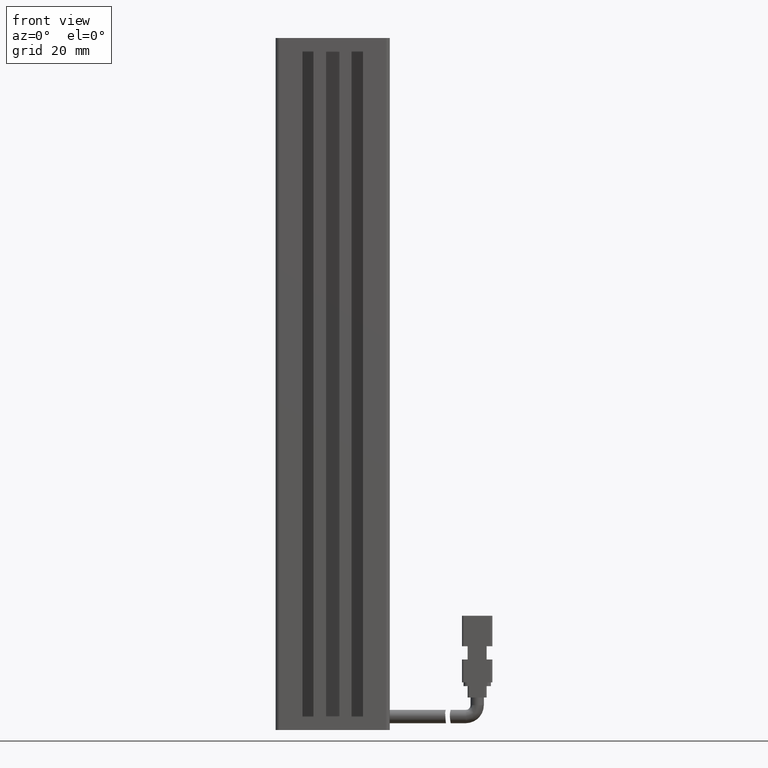
[diagram: clean part render]
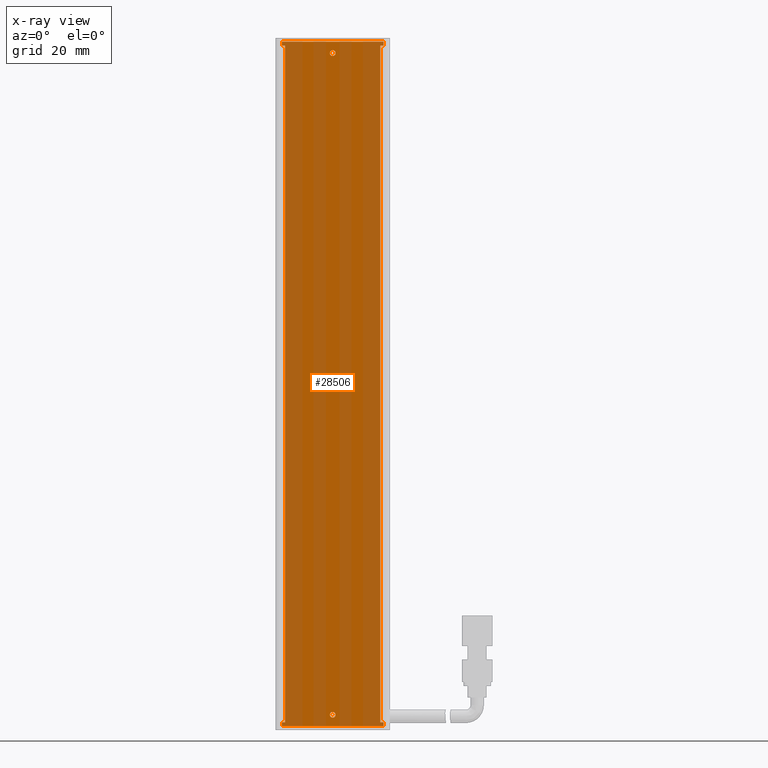
[diagram: x-ray — body ghosted, one internal face saturated and labeled with its STEP entity id]
A machine part, front view, then the same camera in x-ray: the body is ghosted and one INTERNAL B-rep face — a face not visible from any outside direction — is saturated and labeled: STEP entity #28506.
In plain terms, the highlighted planar face has unit normal (-0, 1, 0).
Its self-contained STEP definition (entity closure, byte-faithful):
#586 = CARTESIAN_POINT ( 'NONE',  ( 54.32537974683541600, 32.19594479660386100, -24.99999999999999300 ) ) ;
#869 = DIRECTION ( 'NONE',  ( 0.0000000000000000000, 0.0000000000000000000, 1.000000000000000000 ) ) ;
#938 = VERTEX_POINT ( 'NONE', #8611 ) ;
#1006 = DIRECTION ( 'NONE',  ( -0.0000000000000000000, -1.000000000000000000, -0.0000000000000000000 ) ) ;
#1610 = LINE ( 'NONE', #18017, #9431 ) ;
#2185 = LINE ( 'NONE', #17272, #28840 ) ;
#2342 = EDGE_LOOP ( 'NONE', ( #6633, #31073 ) ) ;
#2847 = VECTOR ( 'NONE', #19498, 1000.000000000000000 ) ;
#3091 = VERTEX_POINT ( 'NONE', #15823 ) ;
#3296 = EDGE_CURVE ( 'NONE', #10468, #37437, #26342, .T. ) ;
#3330 = ORIENTED_EDGE ( 'NONE', *, *, #36889, .F. ) ;
#3418 = EDGE_LOOP ( 'NONE', ( #21195, #26104 ) ) ;
#3920 = DIRECTION ( 'NONE',  ( 5.551115123125781500E-017, 0.0000000000000000000, 1.000000000000000000 ) ) ;
#4083 = EDGE_CURVE ( 'NONE', #6111, #3091, #1610, .T. ) ;
#4271 = AXIS2_PLACEMENT_3D ( 'NONE', #33693, #13590, #37072 ) ;
#4693 = CARTESIAN_POINT ( 'NONE',  ( 28.42537974683542100, 32.19594479660386100, -26.00000000000001100 ) ) ;
#4729 = VERTEX_POINT ( 'NONE', #34956 ) ;
#4782 = VECTOR ( 'NONE', #25027, 1000.000000000000000 ) ;
#5837 = LINE ( 'NONE', #21678, #4782 ) ;
#5924 = AXIS2_PLACEMENT_3D ( 'NONE', #586, #23907, #3920 ) ;
#6111 = VERTEX_POINT ( 'NONE', #42125 ) ;
#6283 = ORIENTED_EDGE ( 'NONE', *, *, #11547, .F. ) ;
#6326 = VERTEX_POINT ( 'NONE', #38513 ) ;
#6566 = VERTEX_POINT ( 'NONE', #33978 ) ;
#6607 = VECTOR ( 'NONE', #9261, 1000.000000000000000 ) ;
#6633 = ORIENTED_EDGE ( 'NONE', *, *, #34277, .F. ) ;
#6950 = VECTOR ( 'NONE', #18146, 1000.000000000000000 ) ;
#7240 = DIRECTION ( 'NONE',  ( 1.000000000000000000, 0.0000000000000000000, -0.0000000000000000000 ) ) ;
#7245 = DIRECTION ( 'NONE',  ( 1.000000000000000000, 0.0000000000000000000, 0.0000000000000000000 ) ) ;
#7682 = LINE ( 'NONE', #32665, #6607 ) ;
#7920 = LINE ( 'NONE', #25223, #16776 ) ;
#8093 = CARTESIAN_POINT ( 'NONE',  ( 27.52537974683539100, 32.19594479660386100, -205.0000000000000000 ) ) ;
#8461 = CARTESIAN_POINT ( 'NONE',  ( 40.92537974683542500, 32.19594479660386800, -204.0000000000000300 ) ) ;
#8611 = CARTESIAN_POINT ( 'NONE',  ( 40.92537974683538900, 32.19594479660386100, -202.7500000000000000 ) ) ;
#8874 = ORIENTED_EDGE ( 'NONE', *, *, #34126, .T. ) ;
#9261 = DIRECTION ( 'NONE',  ( -0.0000000000000000000, -0.0000000000000000000, -1.000000000000000000 ) ) ;
#9293 = AXIS2_PLACEMENT_3D ( 'NONE', #14011, #37519, #17437 ) ;
#9431 = VECTOR ( 'NONE', #17013, 1000.000000000000000 ) ;
#9686 = EDGE_CURVE ( 'NONE', #11628, #15340, #19818, .T. ) ;
#9893 = VECTOR ( 'NONE', #7240, 1000.000000000000000 ) ;
#10179 = ORIENTED_EDGE ( 'NONE', *, *, #25696, .F. ) ;
#10455 = DIRECTION ( 'NONE',  ( -1.000000000000000000, -0.0000000000000000000, 5.551115123125781500E-017 ) ) ;
#10468 = VERTEX_POINT ( 'NONE', #15850 ) ;
#10643 = CARTESIAN_POINT ( 'NONE',  ( 40.92537974683542500, 32.19594479660386800, -26.00000000000001100 ) ) ;
#10868 = CIRCLE ( 'NONE', #17617, 0.7500000000000006700 ) ;
#11547 = EDGE_CURVE ( 'NONE', #27815, #6326, #25098, .T. ) ;
#11628 = VERTEX_POINT ( 'NONE', #13786 ) ;
#11691 = LINE ( 'NONE', #29623, #2847 ) ;
#11800 = EDGE_CURVE ( 'NONE', #938, #25135, #10868, .T. ) ;
#11870 = CARTESIAN_POINT ( 'NONE',  ( 40.92537974683541800, 32.19594479660386100, -28.74999999999999600 ) ) ;
#11885 = ORIENTED_EDGE ( 'NONE', *, *, #12696, .F. ) ;
#12021 = CARTESIAN_POINT ( 'NONE',  ( 40.92537974683538900, 32.19594479660386100, -201.9999999999999700 ) ) ;
#12696 = EDGE_CURVE ( 'NONE', #11628, #4729, #30102, .T. ) ;
#13490 = FACE_BOUND ( 'NONE', #2342, .T. ) ;
#13590 = DIRECTION ( 'NONE',  ( -0.0000000000000000000, -1.000000000000000000, -0.0000000000000000000 ) ) ;
#13786 = CARTESIAN_POINT ( 'NONE',  ( 27.52537974683539100, 32.19594479660386800, -26.00000000000001100 ) ) ;
#14011 = CARTESIAN_POINT ( 'NONE',  ( 40.92537974683541800, 32.19594479660386100, -27.99999999999999600 ) ) ;
#14955 = DIRECTION ( 'NONE',  ( 5.551115123125781500E-017, 0.0000000000000000000, 1.000000000000000000 ) ) ;
#15340 = VERTEX_POINT ( 'NONE', #4693 ) ;
#15823 = CARTESIAN_POINT ( 'NONE',  ( 27.52537974683539100, 32.19594479660386800, -204.0000000000000300 ) ) ;
#15836 = EDGE_LOOP ( 'NONE', ( #34553, #32792, #38875, #6283, #3330, #11885, #22278, #8874, #34770, #19372, #10179, #26673 ) ) ;
#15850 = CARTESIAN_POINT ( 'NONE',  ( 53.42537974683542500, 32.19594479660386100, -204.0000000000000300 ) ) ;
#16776 = VECTOR ( 'NONE', #38567, 1000.000000000000000 ) ;
#16873 = LINE ( 'NONE', #18012, #6950 ) ;
#17013 = DIRECTION ( 'NONE',  ( -1.000000000000000000, -0.0000000000000000000, 0.0000000000000000000 ) ) ;
#17039 = DIRECTION ( 'NONE',  ( -0.0000000000000000000, -1.000000000000000000, -0.0000000000000000000 ) ) ;
#17272 = CARTESIAN_POINT ( 'NONE',  ( 53.42537974683542500, 32.19594479660386800, -24.00000000000000700 ) ) ;
#17437 = DIRECTION ( 'NONE',  ( 0.0000000000000000000, 0.0000000000000000000, 1.000000000000000000 ) ) ;
#17565 = CIRCLE ( 'NONE', #4271, 0.7500000000000006700 ) ;
#17617 = AXIS2_PLACEMENT_3D ( 'NONE', #12021, #1006, #869 ) ;
#18012 = CARTESIAN_POINT ( 'NONE',  ( 27.52537974683540200, 32.19594479660386100, -24.99999999999999300 ) ) ;
#18017 = CARTESIAN_POINT ( 'NONE',  ( 40.92537974683542500, 32.19594479660386800, -204.0000000000000300 ) ) ;
#18146 = DIRECTION ( 'NONE',  ( 5.551115123125781500E-017, 0.0000000000000000000, 1.000000000000000000 ) ) ;
#19372 = ORIENTED_EDGE ( 'NONE', *, *, #37217, .F. ) ;
#19498 = DIRECTION ( 'NONE',  ( 1.000000000000000000, 0.0000000000000000000, -5.551115123125781500E-017 ) ) ;
#19818 = LINE ( 'NONE', #10643, #9893 ) ;
#20404 = PLANE ( 'NONE',  #5924 ) ;
#20616 = CARTESIAN_POINT ( 'NONE',  ( 54.32537974683539500, 32.19594479660386100, -205.0000000000000000 ) ) ;
#20651 = DIRECTION ( 'NONE',  ( -0.0000000000000000000, -0.0000000000000000000, -1.000000000000000000 ) ) ;
#21195 = ORIENTED_EDGE ( 'NONE', *, *, #29121, .F. ) ;
#21436 = DIRECTION ( 'NONE',  ( -5.551115123125781500E-017, -0.0000000000000000000, -1.000000000000000000 ) ) ;
#21678 = CARTESIAN_POINT ( 'NONE',  ( 25.92537974683541800, 32.19594479660386100, -26.00000000000001100 ) ) ;
#22012 = CARTESIAN_POINT ( 'NONE',  ( 54.32537974683541600, 32.19594479660386100, -24.99999999999999300 ) ) ;
#22278 = ORIENTED_EDGE ( 'NONE', *, *, #9686, .T. ) ;
#23907 = DIRECTION ( 'NONE',  ( -0.0000000000000000000, 1.000000000000000000, 0.0000000000000000000 ) ) ;
#25027 = DIRECTION ( 'NONE',  ( 1.000000000000000000, -0.0000000000000000000, 0.0000000000000000000 ) ) ;
#25098 = LINE ( 'NONE', #22012, #42898 ) ;
#25135 = VERTEX_POINT ( 'NONE', #29987 ) ;
#25223 = CARTESIAN_POINT ( 'NONE',  ( 54.32537974683541600, 32.19594479660386100, -24.99999999999999300 ) ) ;
#25696 = EDGE_CURVE ( 'NONE', #27894, #37743, #41933, .T. ) ;
#26104 = ORIENTED_EDGE ( 'NONE', *, *, #43368, .F. ) ;
#26342 = LINE ( 'NONE', #8461, #43085 ) ;
#26414 = CARTESIAN_POINT ( 'NONE',  ( 40.92537974683541800, 32.19594479660386100, -27.24999999999999600 ) ) ;
#26673 = ORIENTED_EDGE ( 'NONE', *, *, #40218, .F. ) ;
#27815 = VERTEX_POINT ( 'NONE', #30126 ) ;
#27894 = VERTEX_POINT ( 'NONE', #20616 ) ;
#28389 = VERTEX_POINT ( 'NONE', #26414 ) ;
#28506 = ADVANCED_FACE ( 'NONE', ( #40242, #31353, #13490 ), #20404, .F. ) ;
#28840 = VECTOR ( 'NONE', #20651, 1000.000000000000000 ) ;
#29121 = EDGE_CURVE ( 'NONE', #28389, #29768, #33842, .T. ) ;
#29623 = CARTESIAN_POINT ( 'NONE',  ( 54.32537974683541600, 32.19594479660386100, -24.99999999999999300 ) ) ;
#29768 = VERTEX_POINT ( 'NONE', #11870 ) ;
#29987 = CARTESIAN_POINT ( 'NONE',  ( 40.92537974683538900, 32.19594479660386100, -201.2499999999999700 ) ) ;
#30102 = LINE ( 'NONE', #38445, #39021 ) ;
#30126 = CARTESIAN_POINT ( 'NONE',  ( 54.32537974683541600, 32.19594479660386100, -24.99999999999999300 ) ) ;
#30537 = CARTESIAN_POINT ( 'NONE',  ( 54.32537974683541600, 32.19594479660386100, -205.0000000000000000 ) ) ;
#31073 = ORIENTED_EDGE ( 'NONE', *, *, #11800, .F. ) ;
#31353 = FACE_BOUND ( 'NONE', #3418, .T. ) ;
#32628 = EDGE_CURVE ( 'NONE', #6566, #10468, #2185, .T. ) ;
#32665 = CARTESIAN_POINT ( 'NONE',  ( 28.42537974683542100, 32.19594479660386800, -24.00000000000000700 ) ) ;
#32792 = ORIENTED_EDGE ( 'NONE', *, *, #32628, .F. ) ;
#33693 = CARTESIAN_POINT ( 'NONE',  ( 40.92537974683538900, 32.19594479660386100, -201.9999999999999700 ) ) ;
#33842 = CIRCLE ( 'NONE', #9293, 0.7500000000000006700 ) ;
#33978 = CARTESIAN_POINT ( 'NONE',  ( 53.42537974683542500, 32.19594479660386800, -25.99999999999999600 ) ) ;
#34126 = EDGE_CURVE ( 'NONE', #15340, #6111, #7682, .T. ) ;
#34277 = EDGE_CURVE ( 'NONE', #25135, #938, #17565, .T. ) ;
#34553 = ORIENTED_EDGE ( 'NONE', *, *, #3296, .F. ) ;
#34770 = ORIENTED_EDGE ( 'NONE', *, *, #4083, .T. ) ;
#34956 = CARTESIAN_POINT ( 'NONE',  ( 27.52537974683541600, 32.19594479660386100, -24.99999999999999300 ) ) ;
#36889 = EDGE_CURVE ( 'NONE', #4729, #27815, #11691, .T. ) ;
#37072 = DIRECTION ( 'NONE',  ( 0.0000000000000000000, 0.0000000000000000000, 1.000000000000000000 ) ) ;
#37130 = CARTESIAN_POINT ( 'NONE',  ( 40.92537974683541800, 32.19594479660386100, -27.99999999999999600 ) ) ;
#37217 = EDGE_CURVE ( 'NONE', #37743, #3091, #16873, .T. ) ;
#37437 = VERTEX_POINT ( 'NONE', #42756 ) ;
#37519 = DIRECTION ( 'NONE',  ( -0.0000000000000000000, -1.000000000000000000, -0.0000000000000000000 ) ) ;
#37743 = VERTEX_POINT ( 'NONE', #8093 ) ;
#37941 = AXIS2_PLACEMENT_3D ( 'NONE', #37130, #17039, #40476 ) ;
#38445 = CARTESIAN_POINT ( 'NONE',  ( 27.52537974683540200, 32.19594479660386100, -24.99999999999999300 ) ) ;
#38513 = CARTESIAN_POINT ( 'NONE',  ( 54.32537974683541600, 32.19594479660386100, -26.00000000000001100 ) ) ;
#38567 = DIRECTION ( 'NONE',  ( -5.551115123125781500E-017, -0.0000000000000000000, -1.000000000000000000 ) ) ;
#38875 = ORIENTED_EDGE ( 'NONE', *, *, #42230, .T. ) ;
#39021 = VECTOR ( 'NONE', #14955, 1000.000000000000000 ) ;
#40218 = EDGE_CURVE ( 'NONE', #37437, #27894, #7920, .T. ) ;
#40242 = FACE_OUTER_BOUND ( 'NONE', #15836, .T. ) ;
#40476 = DIRECTION ( 'NONE',  ( 0.0000000000000000000, 0.0000000000000000000, 1.000000000000000000 ) ) ;
#40883 = VECTOR ( 'NONE', #10455, 1000.000000000000000 ) ;
#41933 = LINE ( 'NONE', #30537, #40883 ) ;
#42125 = CARTESIAN_POINT ( 'NONE',  ( 28.42537974683542100, 32.19594479660386800, -204.0000000000000300 ) ) ;
#42230 = EDGE_CURVE ( 'NONE', #6566, #6326, #5837, .T. ) ;
#42756 = CARTESIAN_POINT ( 'NONE',  ( 54.32537974683541600, 32.19594479660386100, -204.0000000000000300 ) ) ;
#42898 = VECTOR ( 'NONE', #21436, 1000.000000000000000 ) ;
#43085 = VECTOR ( 'NONE', #7245, 1000.000000000000000 ) ;
#43098 = CIRCLE ( 'NONE', #37941, 0.7500000000000006700 ) ;
#43368 = EDGE_CURVE ( 'NONE', #29768, #28389, #43098, .T. ) ;